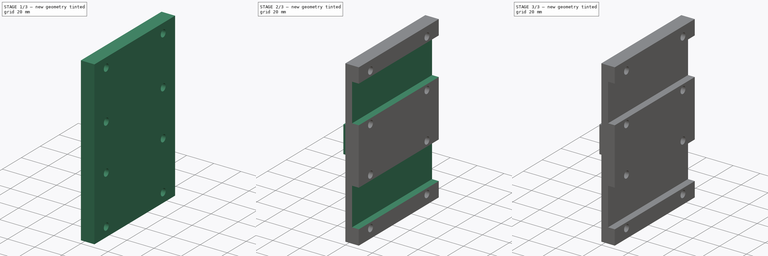
[diagram: build sequence overview — one tinted view per stage of 3, left to right]
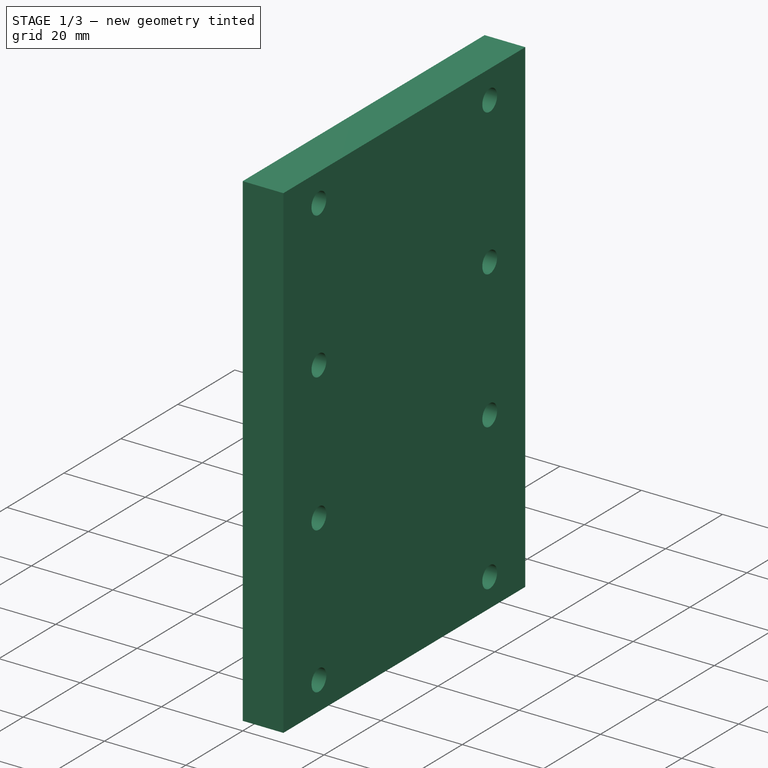
[diagram: stage 1 of 3 — iso view after this stage's code; geometry added in this stage tinted green]
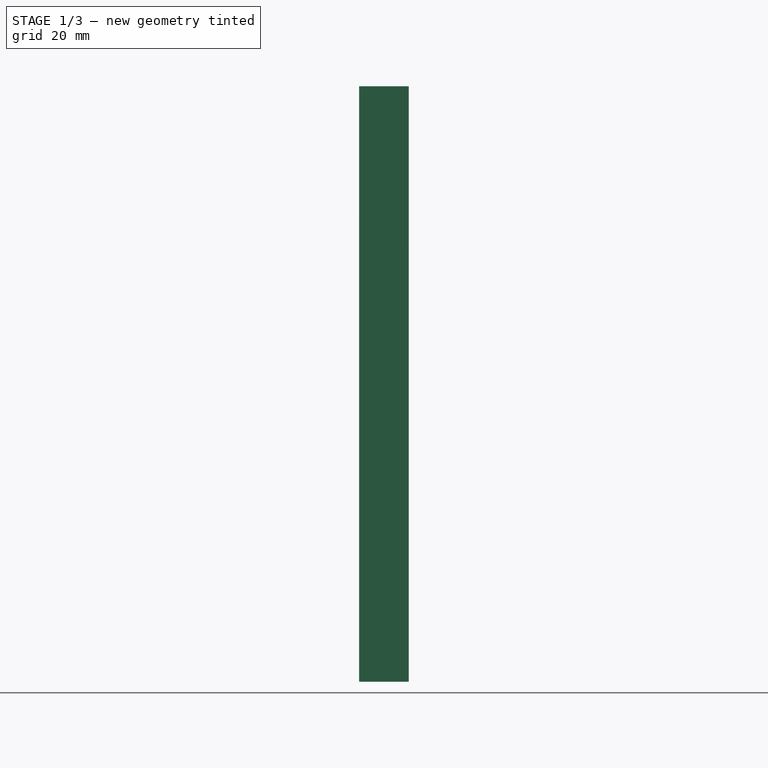
[diagram: stage 1 of 3 — front view after this stage's code; geometry added in this stage tinted green]
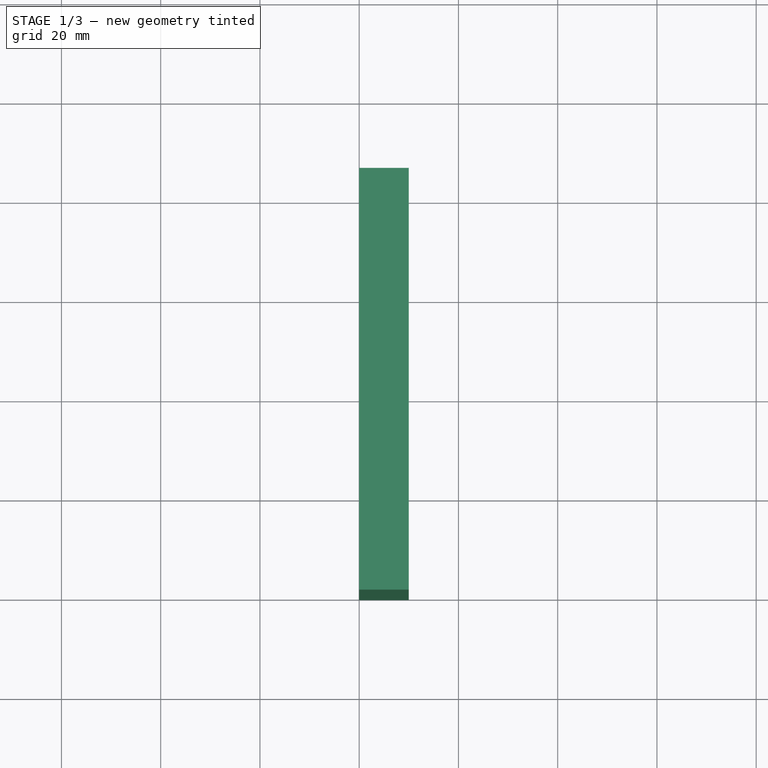
[diagram: stage 1 of 3 — top view after this stage's code; geometry added in this stage tinted green]
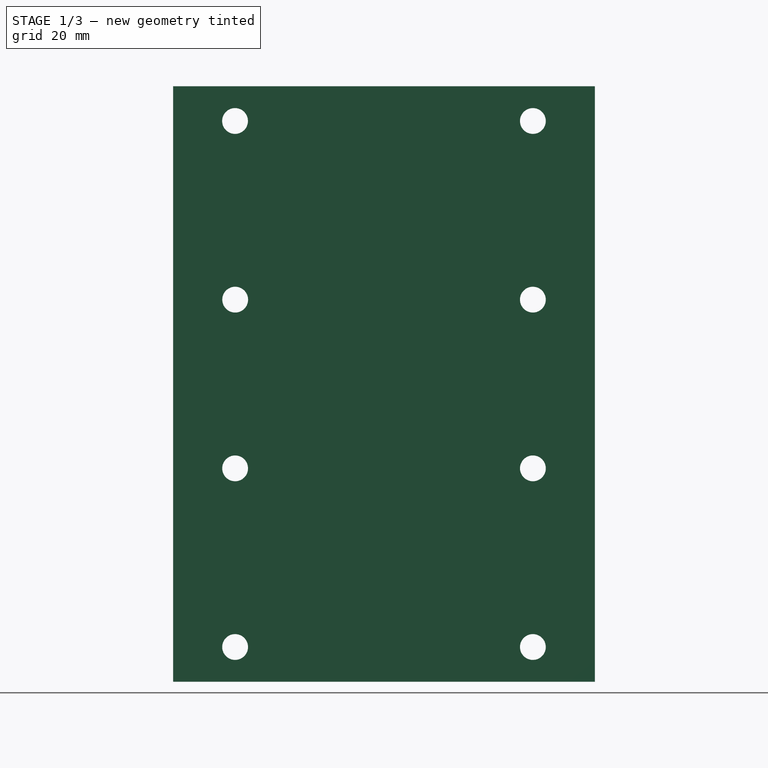
[diagram: stage 1 of 3 — right view after this stage's code; geometry added in this stage tinted green]
FCSTD DOCUMENT  (FreeCAD 0.19R24267 +148 (Git))
Label: plate_back
License: All rights reserved
LicenseURL: http://en.wikipedia.org/wiki/All_rights_reserved
objects: Sketcher::SketchObject×6, PartDesign::Pocket×4, PartDesign::Pad×2, PartDesign::Body×1
note: 19 computed .brp shape members not serialized (recipe doc carries the construction recipe); baked Part::Feature solids carry a one-line shape summary decoded from their .brp

FEATURE [Sketcher::SketchObject] Sketch
  FullyConstrained = true
  MapMode = 5
  Placement = pos=(0,0,0) rot=(0.57735,0.57735,0.57735;2.0944rad)
  Support = -> [YZ_Plane]
  sketch-geometry (4):
    g0: LineSegment StartX=0 StartY=0 StartZ=0 EndX=85 EndY=0 EndZ=0
    g1: LineSegment StartX=85 StartY=0 StartZ=0 EndX=85 EndY=120 EndZ=0
    g2: LineSegment StartX=85 StartY=120 StartZ=0 EndX=0 EndY=120 EndZ=0
    g3: LineSegment StartX=0 StartY=120 StartZ=0 EndX=0 EndY=0 EndZ=0
  constraints (11):
    c: Coincident(g0,g1)
    c: Coincident(g1,g2)
    c: Coincident(g2,g3)
    c: Coincident(g3,g0)
    c: Horizontal(g0)
    c: Horizontal(g2)
    c: Vertical(g1)
    c: Vertical(g3)
    c: Coincident(g0,g-1)
    c: Distance(g0) = 85
    c: DistanceY(g1,g1) = 120
FEATURE [PartDesign::Pad] Pad
  Direction = (1,1,1)
  Length = 10
  Length2 = 100
  Placement = pos=(0,0,0) rot=(0.57735,0.57735,0.57735;2.0944rad)
  Profile = -> Sketch
  Type = 0
FEATURE [Sketcher::SketchObject] Sketch001
  FullyConstrained = false
  MapMode = 5
  Placement = pos=(10,-4.4e-15,3.3e-15) rot=(0.57735,0.57735,0.57735;2.0944rad)
  Support = -> [Pad]
  sketch-geometry (18):
    g0: LineSegment StartX=0 StartY=7 StartZ=0 EndX=84.9999 EndY=7 EndZ=0
    g1: LineSegment StartX=0 StartY=43 StartZ=0 EndX=85 EndY=43 EndZ=0
    g2: LineSegment StartX=0 StartY=113 StartZ=0 EndX=85 EndY=113 EndZ=0
    g3: LineSegment StartX=0 StartY=77 StartZ=0 EndX=85 EndY=77 EndZ=0
    g4: GeomPoint X=0 Y=120 Z=0
    g5: LineSegment StartX=0 StartY=25 StartZ=0 EndX=85 EndY=25 EndZ=0
    g6: LineSegment StartX=0.359009 StartY=95 StartZ=0 EndX=85 EndY=95 EndZ=0
    g7: LineSegment StartX=42.5 StartY=0 StartZ=0 EndX=42.5 EndY=120 EndZ=0
    g8: LineSegment StartX=72.5 StartY=0 StartZ=0 EndX=72.5 EndY=120 EndZ=0
    g9: LineSegment StartX=12.5 StartY=0 StartZ=0 EndX=12.5 EndY=119.669 EndZ=0
    g10: Circle CenterX=12.4966 CenterY=7 CenterZ=0 NormalX=0 NormalY=0 NormalZ=1 AngleXU=0 Radius=2.6
    g11: Circle CenterX=72.4998 CenterY=7 CenterZ=0 NormalX=0 NormalY=0 NormalZ=1 AngleXU=0 Radius=2.6
    g12: Circle CenterX=12.4982 CenterY=43 CenterZ=0 NormalX=0 NormalY=0 NormalZ=1 AngleXU=0 Radius=2.6
    g13: Circle CenterX=72.5044 CenterY=43 CenterZ=0 NormalX=0 NormalY=0 NormalZ=1 AngleXU=0 Radius=2.6
    g14: Circle CenterX=12.4834 CenterY=113 CenterZ=0 NormalX=0 NormalY=0 NormalZ=1 AngleXU=0 Radius=2.6
    g15: Circle CenterX=72.5 CenterY=113 CenterZ=0 NormalX=0 NormalY=0 NormalZ=1 AngleXU=0 Radius=2.6
    g16: Circle CenterX=72.5 CenterY=77 CenterZ=0 NormalX=0 NormalY=0 NormalZ=1 AngleXU=0 Radius=2.6
    g17: Circle CenterX=12.5102 CenterY=77 CenterZ=0 NormalX=0 NormalY=0 NormalZ=1 AngleXU=0 Radius=2.6
  constraints (40):
    c: PointOnObject(g0,g-2)
    c: Horizontal(g0)
    c: PointOnObject(g1,g-2)
    c: Horizontal(g1)
    c: PointOnObject(g2,g-2)
    c: Horizontal(g2)
    c: PointOnObject(g3,g-2)
    c: Horizontal(g3)
    c: Distance(g0,g-1) = 7
    c: Distance(g0,g1) = 36
    c: PointOnObject(g4,g-2)
    c: Distance(g4,g2) = 7
    c: Distance(g2,g3) = 36
    c: Distance(g1,g3) = 34
    c: PointOnObject(g5,g-2)
    c: Horizontal(g5)
    c: Distance(g5,g-1) = 25
    c: Horizontal(g6)
    c: Distance(g6,g-1) = 95
    c: PointOnObject(g7,g-1)
    c: Vertical(g7)
    c: Distance(g7,g-1) = 42.5
    c: PointOnObject(g8,g-1)
    c: Vertical(g8)
    c: Distance(g7,g8) = 30
    c: PointOnObject(g9,g-1)
    c: Vertical(g9)
    c: Distance(g7,g9) = 30
    c: Radius(g13) = 2.6
    c: Radius(g12) = 2.6
    c: Radius(g11) = 2.6
    c: Radius(g10) = 2.6
    c: PointOnObject(g14,g2)
    c: PointOnObject(g15,g8)
    c: PointOnObject(g16,g8)
    c: PointOnObject(g17,g3)
    c: Radius(g14) = 2.6
    c: Radius(g15) = 2.6
    c: Radius(g16) = 2.6
    c: Radius(g17) = 2.6
FEATURE [PartDesign::Pocket] Pocket
  BaseFeature = -> Pad
  Length = 10
  Length2 = 100
  Placement = pos=(0,0,0) rot=(0.57735,0.57735,0.57735;2.0944rad)
  Profile = -> Sketch001
  Type = 0
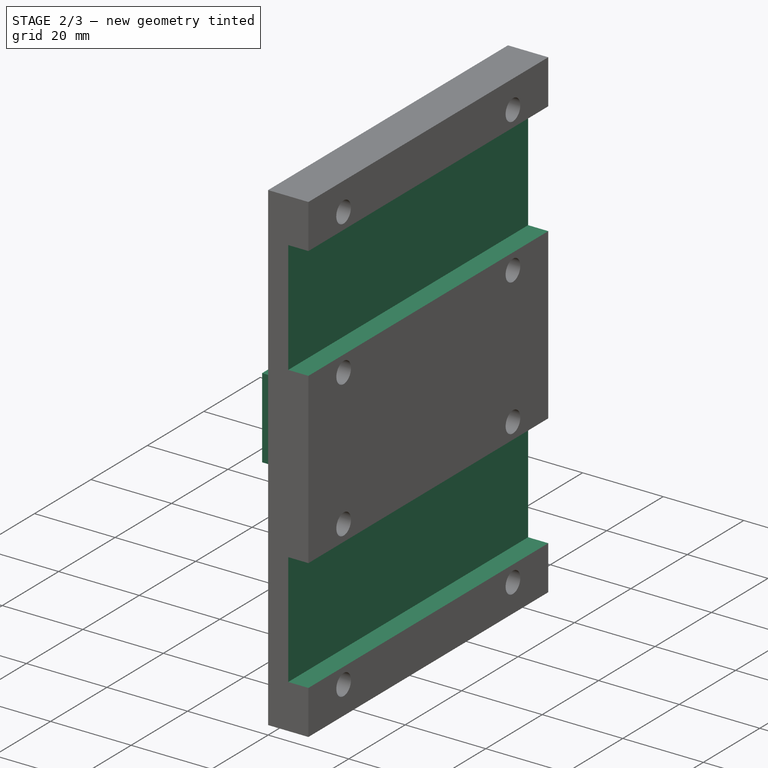
[diagram: stage 2 of 3 — iso view after this stage's code; geometry added in this stage tinted green]
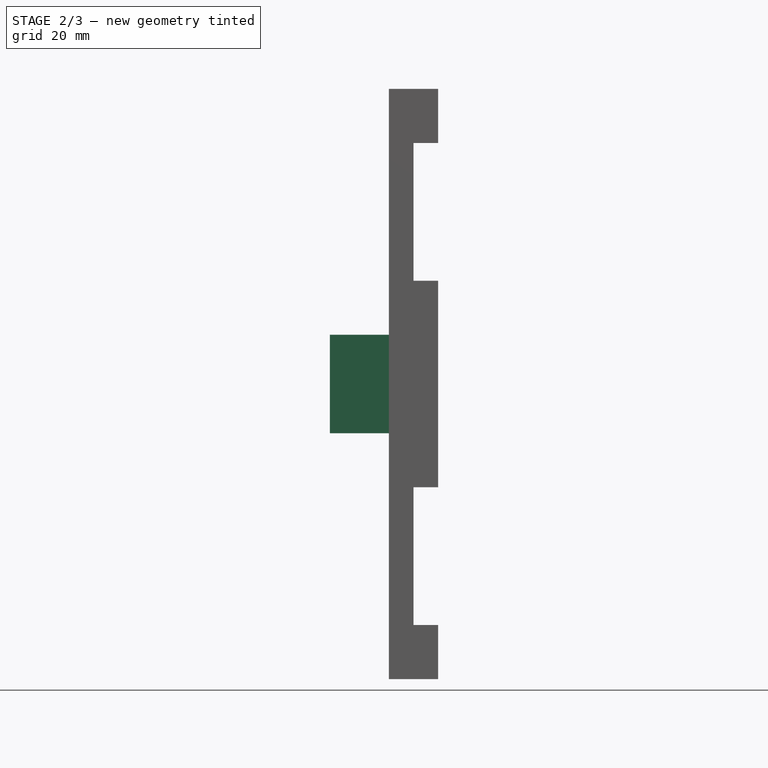
[diagram: stage 2 of 3 — front view after this stage's code; geometry added in this stage tinted green]
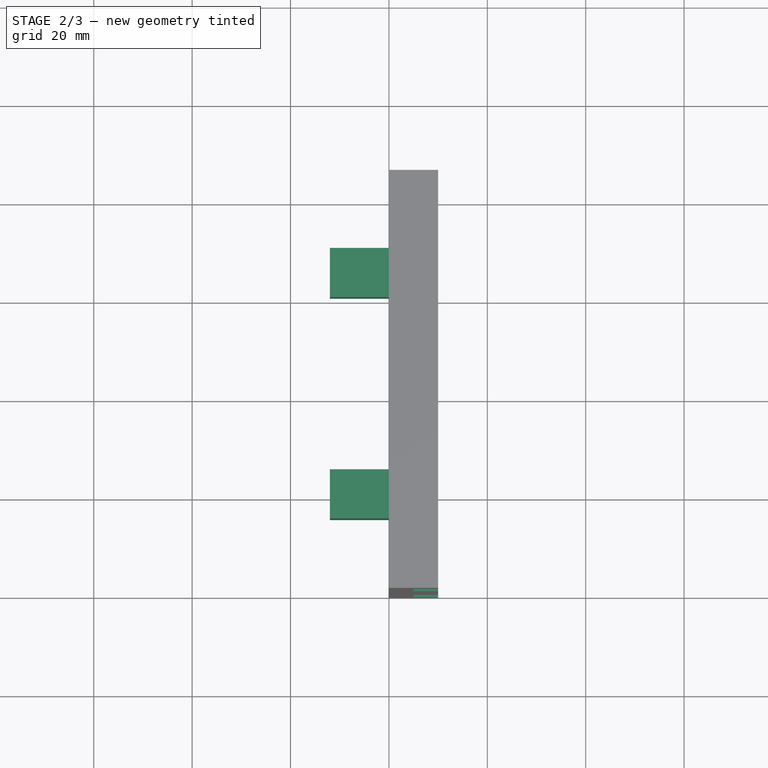
[diagram: stage 2 of 3 — top view after this stage's code; geometry added in this stage tinted green]
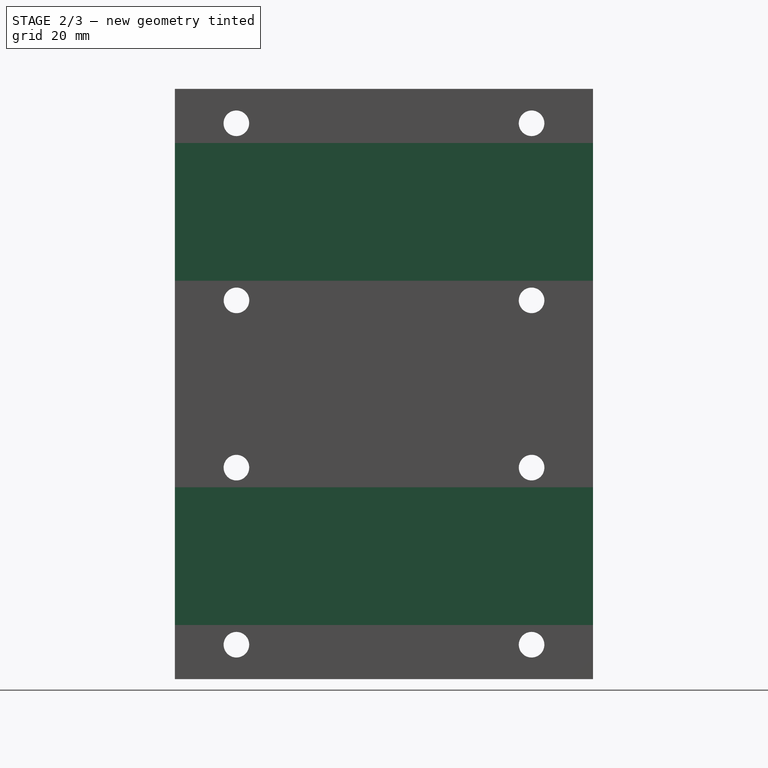
[diagram: stage 2 of 3 — right view after this stage's code; geometry added in this stage tinted green]
FEATURE [Sketcher::SketchObject] Sketch002
  FullyConstrained = false
  MapMode = 5
  Placement = pos=(10,-6.7e-15,4.4e-15) rot=(0.57735,0.57735,0.57735;2.0944rad)
  Support = -> [Pocket]
  sketch-geometry (10):
    g0: LineSegment StartX=0 StartY=25 StartZ=0 EndX=85.0028 EndY=25 EndZ=0
    g1: LineSegment StartX=0 StartY=95 StartZ=0 EndX=85.0001 EndY=95 EndZ=0
    g2: LineSegment StartX=5.90461e-11 StartY=39 StartZ=0 EndX=85 EndY=39 EndZ=0
    g3: LineSegment StartX=85 StartY=39 StartZ=0 EndX=85 EndY=11 EndZ=0
    g4: LineSegment StartX=85 StartY=11 StartZ=0 EndX=5.90461e-11 EndY=11 EndZ=0
    g5: LineSegment StartX=5.90461e-11 StartY=11 StartZ=0 EndX=5.90461e-11 EndY=39 EndZ=0
    g6: LineSegment StartX=-7.0202e-12 StartY=109 StartZ=0 EndX=85 EndY=109 EndZ=0
    g7: LineSegment StartX=85 StartY=109 StartZ=0 EndX=85 EndY=81 EndZ=0
    g8: LineSegment StartX=85 StartY=81 StartZ=0 EndX=-7.0202e-12 EndY=81 EndZ=0
    g9: LineSegment StartX=-7.0202e-12 StartY=81 StartZ=0 EndX=-7.0202e-12 EndY=109 EndZ=0
  constraints (28):
    c: PointOnObject(g0,g-2)
    c: Horizontal(g0)
    c: PointOnObject(g1,g-2)
    c: Horizontal(g1)
    c: Distance(g0,g-1) = 25
    c: Distance(g1,g-1) = 95
    c: Coincident(g2,g3)
    c: Coincident(g3,g4)
    c: Coincident(g4,g5)
    c: Coincident(g5,g2)
    c: Horizontal(g2)
    c: Horizontal(g4)
    c: Vertical(g3)
    c: Vertical(g5)
    c: Coincident(g6,g7)
    c: Coincident(g7,g8)
    c: Coincident(g8,g9)
    c: Coincident(g9,g6)
    c: Horizontal(g6)
    c: Horizontal(g8)
    c: Vertical(g7)
    c: Vertical(g9)
    c: DistanceX(g2,g2) = 85
    c: DistanceX(g6,g6) = 85
    c: DistanceY(g3,g3) = 28
    c: DistanceY(g7,g7) = 28
    c: Distance(g2,g0) = 14
    c: Distance(g7,g1) = 14
FEATURE [PartDesign::Pocket] Pocket001
  BaseFeature = -> Pocket
  Length = 5
  Length2 = 100
  Placement = pos=(0,0,0) rot=(0.57735,0.57735,0.57735;2.0944rad)
  Profile = -> Sketch002
  Type = 0
FEATURE [Sketcher::SketchObject] Sketch003
  FullyConstrained = false
  MapMode = 5
  Placement = pos=(-6.83e-14,0,0) rot=(-0.57735,-0.57735,0.57735;2.0944rad)
  Support = -> [Pocket001]
  sketch-geometry (9):
    g0: LineSegment StartX=15 StartY=-50 StartZ=0 EndX=25 EndY=-50 EndZ=0
    g1: LineSegment StartX=25 StartY=-50 StartZ=0 EndX=25 EndY=-70 EndZ=0
    g2: LineSegment StartX=25 StartY=-70 StartZ=0 EndX=15 EndY=-70 EndZ=0
    g3: LineSegment StartX=15 StartY=-70 StartZ=0 EndX=15 EndY=-50 EndZ=0
    g4: LineSegment StartX=60 StartY=-50 StartZ=0 EndX=70 EndY=-50 EndZ=0
    g5: LineSegment StartX=70 StartY=-50 StartZ=0 EndX=70 EndY=-70 EndZ=0
    g6: LineSegment StartX=70 StartY=-70 StartZ=0 EndX=60 EndY=-70 EndZ=0
    g7: LineSegment StartX=60 StartY=-70 StartZ=0 EndX=60 EndY=-50 EndZ=0
    g8: LineSegment StartX=0 StartY=-60 StartZ=0 EndX=85 EndY=-60 EndZ=0
  constraints (26):
    c: Coincident(g0,g1)
    c: Coincident(g1,g2)
    c: Coincident(g2,g3)
    c: Coincident(g3,g0)
    c: Horizontal(g0)
    c: Horizontal(g2)
    c: Vertical(g1)
    c: Vertical(g3)
    c: Coincident(g4,g5)
    c: Coincident(g5,g6)
    c: Coincident(g6,g7)
    c: Coincident(g7,g4)
    c: Horizontal(g4)
    c: Horizontal(g6)
    c: Vertical(g5)
    c: Vertical(g7)
    c: Distance(g0) = 10
    c: Distance(g4) = 10
    c: Distance(g5) = 20
    c: Distance(g1) = 20
    c: Distance(g2,g-2) = 15
    c: Distance(g1,g6) = 35
    c: PointOnObject(g8,g-2)
    c: Horizontal(g8)
    c: Distance(g0,g-1) = 50
    c: Distance(g4,g-1) = 50
FEATURE [PartDesign::Pad] Pad001
  BaseFeature = -> Pocket001
  Direction = (1,1,1)
  Length = 12
  Length2 = 100
  Placement = pos=(0,0,0) rot=(0.57735,0.57735,0.57735;2.0944rad)
  Profile = -> Sketch003
  Type = 0
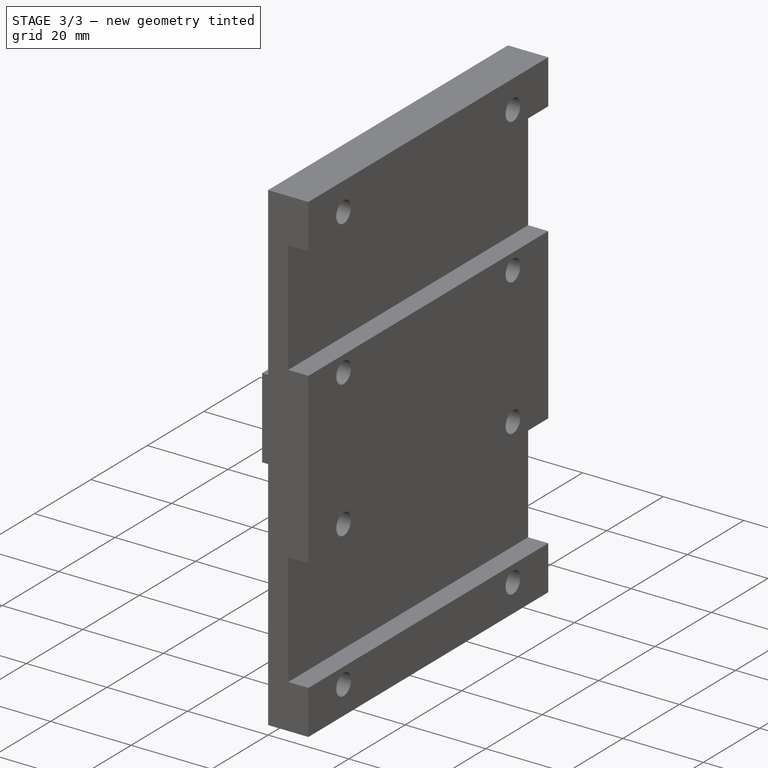
[diagram: stage 3 of 3 — iso view after this stage's code; geometry added in this stage tinted green]
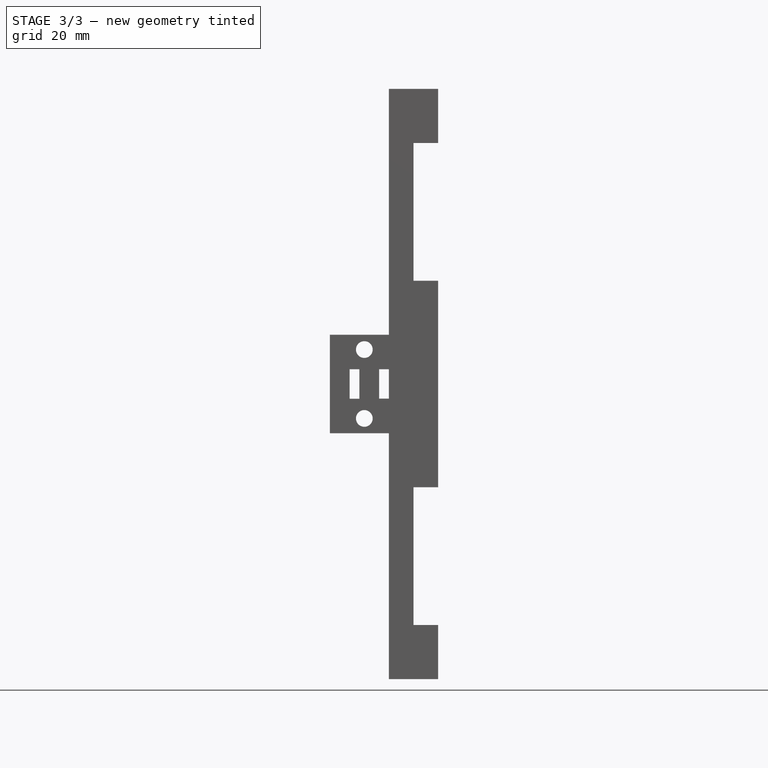
[diagram: stage 3 of 3 — front view after this stage's code; geometry added in this stage tinted green]
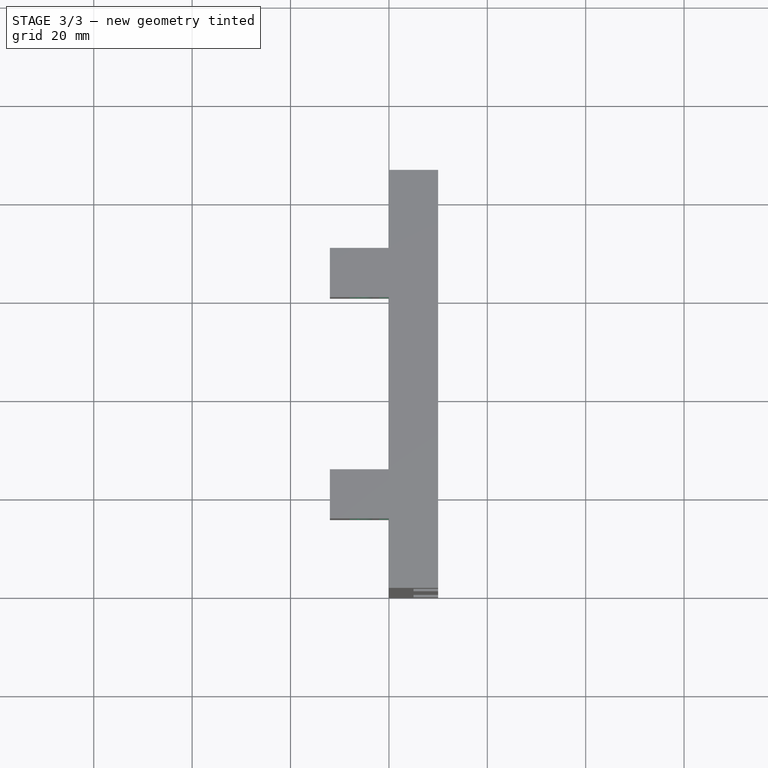
[diagram: stage 3 of 3 — top view after this stage's code; geometry added in this stage tinted green]
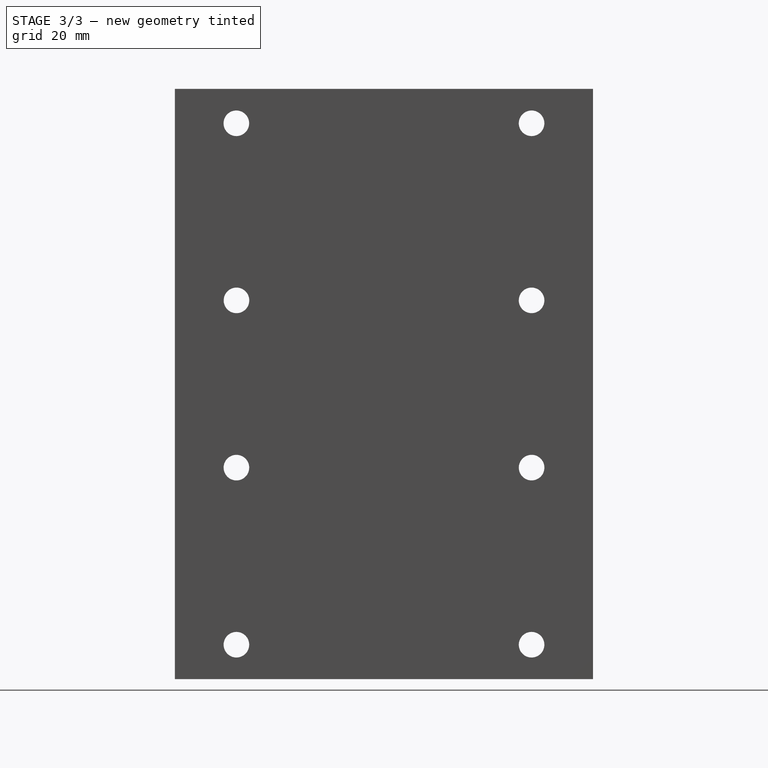
[diagram: stage 3 of 3 — right view after this stage's code; geometry added in this stage tinted green]
FEATURE [Sketcher::SketchObject] Sketch004
  FullyConstrained = false
  MapMode = 5
  Placement = pos=(1.5e-14,15,-4.2e-15) rot=(-0.57735,-0.57735,0.57735;4.18879rad)
  Support = -> [Pad001]
  sketch-geometry (10):
    g0: Circle CenterX=-67 CenterY=-5 CenterZ=0 NormalX=0 NormalY=0 NormalZ=1 AngleXU=0 Radius=1.7
    g1: Circle CenterX=-53 CenterY=-5 CenterZ=0 NormalX=0 NormalY=0 NormalZ=1 AngleXU=0 Radius=1.7
    g2: LineSegment StartX=-63.0336 StartY=0 StartZ=0 EndX=-57.0336 EndY=0 EndZ=0
    g3: LineSegment StartX=-57.0336 StartY=0 StartZ=0 EndX=-57.0336 EndY=-2 EndZ=0
    g4: LineSegment StartX=-57.0336 StartY=-2 StartZ=0 EndX=-63.0336 EndY=-2 EndZ=0
    g5: LineSegment StartX=-63.0336 StartY=-2 StartZ=0 EndX=-63.0336 EndY=0 EndZ=0
    g6: LineSegment StartX=-63 StartY=-5.99986 StartZ=0 EndX=-57 EndY=-5.99986 EndZ=0
    g7: LineSegment StartX=-57 StartY=-5.99986 StartZ=0 EndX=-57 EndY=-7.99986 EndZ=0
    g8: LineSegment StartX=-57 StartY=-7.99986 StartZ=0 EndX=-63 EndY=-7.99986 EndZ=0
    g9: LineSegment StartX=-63 StartY=-7.99986 StartZ=0 EndX=-63 EndY=-5.99986 EndZ=0
  constraints (26):
    c: Distance(g0,g-1) = 5
    c: Distance(g1,g-1) = 5
    c: Coincident(g2,g3)
    c: Coincident(g3,g4)
    c: Coincident(g4,g5)
    c: Coincident(g5,g2)
    c: Horizontal(g2)
    c: Horizontal(g4)
    c: Vertical(g3)
    c: Vertical(g5)
    c: PointOnObject(g2,g-1)
    c: Distance(g4) = 6
    c: Distance(g3) = 2
    c: Coincident(g6,g7)
    c: Coincident(g7,g8)
    c: Coincident(g8,g9)
    c: Coincident(g9,g6)
    c: Horizontal(g6)
    c: Horizontal(g8)
    c: Vertical(g7)
    c: Vertical(g9)
    c: Distance(g7) = 2
    c: Distance(g6,g3) = 4
    c: Distance(g8) = 6
    c: Radius(g1) = 1.7
    c: Radius(g0) = 1.7
FEATURE [PartDesign::Pocket] Pocket002
  BaseFeature = -> Pad001
  Length = 10
  Length2 = 100
  Placement = pos=(0,0,0) rot=(0.57735,0.57735,0.57735;2.0944rad)
  Profile = -> Sketch004
  Type = 0
FEATURE [Sketcher::SketchObject] Sketch005
  FullyConstrained = false
  MapMode = 5
  Placement = pos=(6.99e-14,70,-4.27e-14) rot=(0.57735,0.57735,0.57735;4.18879rad)
  Support = -> [Pocket002]
  sketch-geometry (10):
    g0: LineSegment StartX=57 StartY=0 StartZ=0 EndX=63 EndY=0 EndZ=0
    g1: LineSegment StartX=63 StartY=0 StartZ=0 EndX=63 EndY=-2 EndZ=0
    g2: LineSegment StartX=63 StartY=-2 StartZ=0 EndX=57 EndY=-2 EndZ=0
    g3: LineSegment StartX=57 StartY=-2 StartZ=0 EndX=57 EndY=0 EndZ=0
    g4: LineSegment StartX=57 StartY=-6 StartZ=0 EndX=63 EndY=-6 EndZ=0
    g5: LineSegment StartX=63 StartY=-6 StartZ=0 EndX=63 EndY=-8 EndZ=0
    g6: LineSegment StartX=63 StartY=-8 StartZ=0 EndX=57 EndY=-8 EndZ=0
    g7: LineSegment StartX=57 StartY=-8 StartZ=0 EndX=57 EndY=-6 EndZ=0
    g8: Circle CenterX=53 CenterY=-5 CenterZ=0 NormalX=0 NormalY=0 NormalZ=1 AngleXU=0 Radius=1.7
    g9: Circle CenterX=67 CenterY=-5 CenterZ=0 NormalX=0 NormalY=0 NormalZ=1 AngleXU=0 Radius=1.7
  constraints (26):
    c: Coincident(g0,g1)
    c: Coincident(g1,g2)
    c: Coincident(g2,g3)
    c: Coincident(g3,g0)
    c: Horizontal(g0)
    c: Horizontal(g2)
    c: Vertical(g1)
    c: Vertical(g3)
    c: PointOnObject(g0,g-1)
    c: Coincident(g4,g5)
    c: Coincident(g5,g6)
    c: Coincident(g6,g7)
    c: Coincident(g7,g4)
    c: Horizontal(g4)
    c: Horizontal(g6)
    c: Vertical(g5)
    c: Vertical(g7)
    c: Radius(g8) = 1.7
    c: Radius(g9) = 1.7
    c: Distance(g9,g-1) = 5
    c: Distance(g8,g-1) = 5
    c: Distance(g4,g1) = 4
    c: Distance(g1) = 2
    c: Distance(g5) = 2
    c: Distance(g4) = 6
    c: Distance(g2) = 6
FEATURE [PartDesign::Pocket] Pocket003
  BaseFeature = -> Pocket002
  Length = 10
  Length2 = 100
  Placement = pos=(0,0,0) rot=(0.57735,0.57735,0.57735;2.0944rad)
  Profile = -> Sketch005
  Type = 0
FEATURE [PartDesign::Body] Body
  Group = -> [Sketch,Pad,Sketch001,Pocket,Sketch002,Pocket001,Sketch003,Pad001,Sketch004,Pocket002,Sketch005,Pocket003]
  Origin = -> Origin
  Tip = -> Pocket003
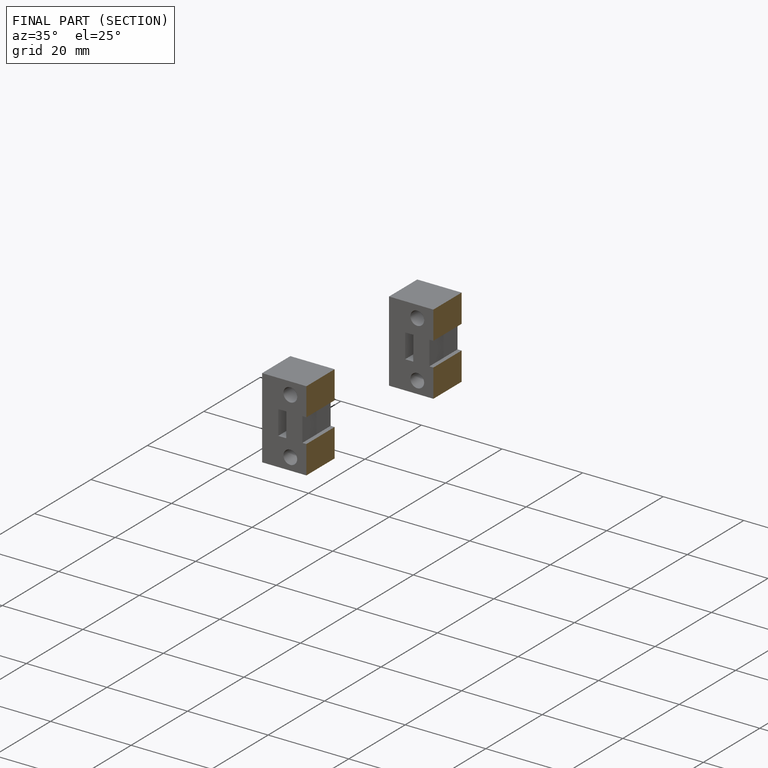
[diagram: finished part — half-section view (interior)]
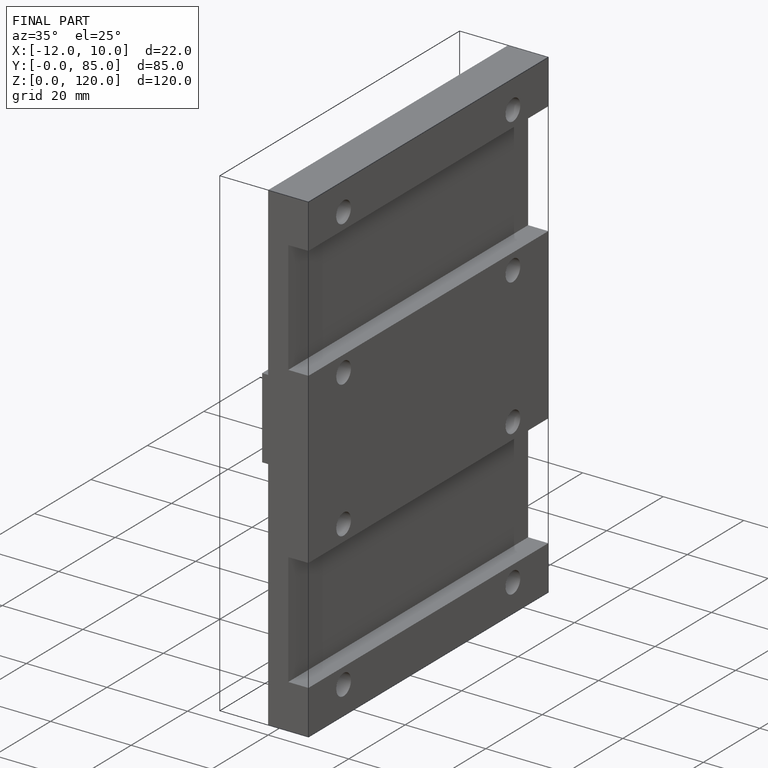
[diagram: finished part — iso view with bounding-box wireframe]
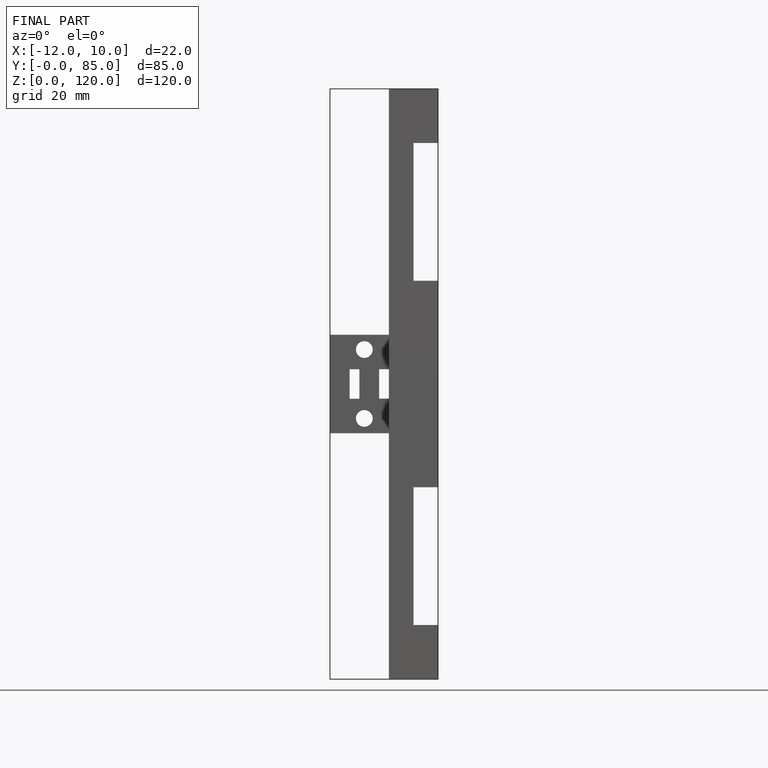
[diagram: finished part — front view with bounding-box wireframe]
